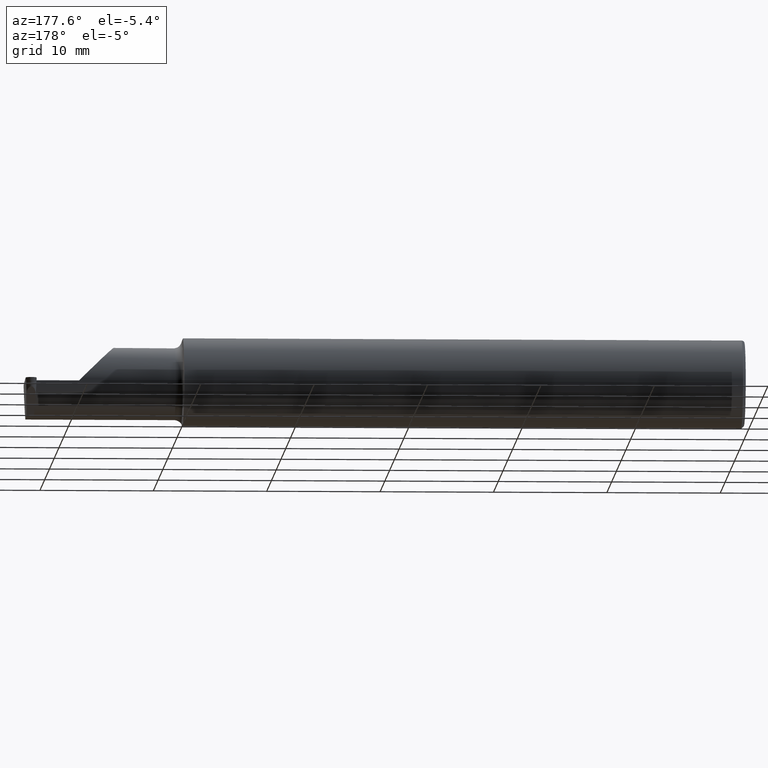
[diagram: clean part render]
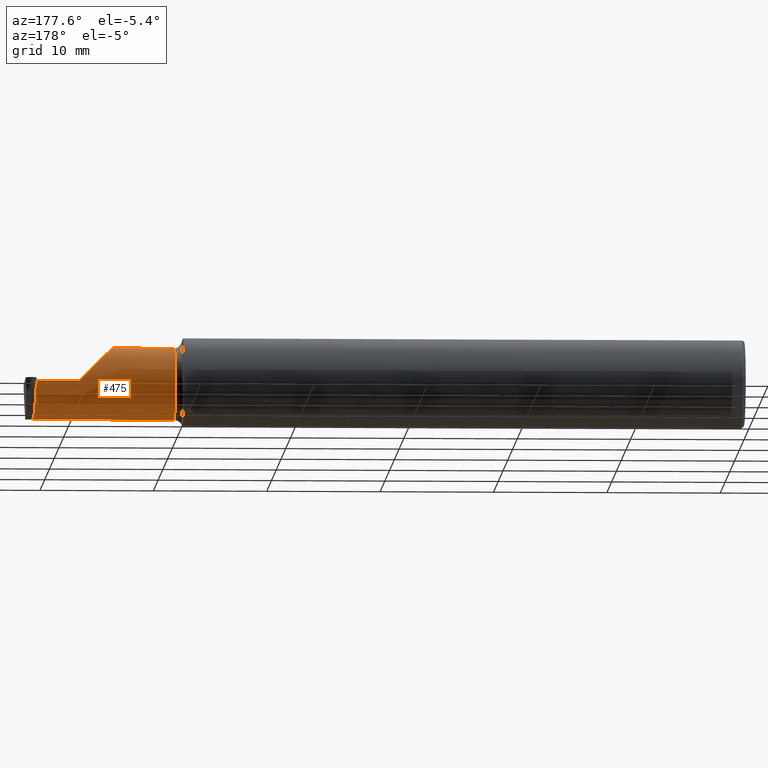
[diagram: same view with one face highlighted and labeled with its STEP entity id]
A machine part, auxiliary view. The second image highlights one B-rep face of the part: STEP entity #475.
In plain terms, the highlighted cylindrical surface (edge-blend (fillet) strip) has radius 3.175 mm, axis along (-1, -0, -0).
Its self-contained STEP definition (entity closure, byte-faithful):
#8 = DIRECTION ( 'NONE',  ( 0.000000000000000000, -1.000000000000000000, 0.000000000000000000 ) ) ;
#16 = EDGE_CURVE ( 'NONE', #434, #116, #212, .T. ) ;
#49 = EDGE_CURVE ( 'NONE', #323, #434, #563, .T. ) ;
#52 =( BOUNDED_CURVE ( )  B_SPLINE_CURVE ( 3, ( #372, #584, #316, #361 ),
 .UNSPECIFIED., .F., .F. ) 
 B_SPLINE_CURVE_WITH_KNOTS ( ( 4, 4 ),
 ( 3.176499238629678867, 4.677482395344782162 ),
 .UNSPECIFIED. ) 
 CURVE ( )  GEOMETRIC_REPRESENTATION_ITEM ( )  RATIONAL_B_SPLINE_CURVE ( ( 1.000000000000000000, 0.8209024677461181918, 0.8209024677461181918, 1.000000000000000000 ) ) 
 REPRESENTATION_ITEM ( '' )  );
#61 = CARTESIAN_POINT ( 'NONE',  ( 2.491731938133923130, -0.08909999999999977660, -0.1250000000000000278 ) ) ;
#63 = CARTESIAN_POINT ( 'NONE',  ( 2.455817866257967275, 0.03559550628247789422, -0.008719559218018122643 ) ) ;
#87 = CARTESIAN_POINT ( 'NONE',  ( 2.456122359975489111, 0.03589999999999995278, 0.000000000000000000 ) ) ;
#110 = EDGE_LOOP ( 'NONE', ( #494, #569, #342, #324, #200, #304, #359, #465, #698, #431 ) ) ;
#111 = DIRECTION ( 'NONE',  ( -1.000000000000000000, -3.338285537973413126E-17, -0.000000000000000000 ) ) ;
#113 = VECTOR ( 'NONE', #180, 39.37007874015748143 ) ;
#116 = VERTEX_POINT ( 'NONE', #545 ) ;
#125 = EDGE_CURVE ( 'NONE', #640, #170, #550, .T. ) ;
#151 = CARTESIAN_POINT ( 'NONE',  ( 2.491656083944432165, -0.09360841750841739084, -0.1249186702281520622 ) ) ;
#165 = CARTESIAN_POINT ( 'NONE',  ( 2.491731938133923130, -0.08909999999999977660, -0.1250000000000000278 ) ) ;
#170 = VERTEX_POINT ( 'NONE', #87 ) ;
#172 = CARTESIAN_POINT ( 'NONE',  ( 2.491680411974855680, -0.09210618219364760662, -0.1249728871357008442 ) ) ;
#174 = CIRCLE ( 'NONE', #281, 0.1250000000000000833 ) ;
#176 = CARTESIAN_POINT ( 'NONE',  ( 1.974999999999999867, -0.09360841750841737696, -0.1249186702281520900 ) ) ;
#180 = DIRECTION ( 'NONE',  ( 1.000000000000000000, 3.338285537973413126E-17, 0.000000000000000000 ) ) ;
#185 = CARTESIAN_POINT ( 'NONE',  ( 2.491656083944432165, -0.09360841750841739084, -0.1249186702281520622 ) ) ;
#200 = ORIENTED_EDGE ( 'NONE', *, *, #125, .T. ) ;
#201 = EDGE_CURVE ( 'NONE', #240, #287, #508, .T. ) ;
#205 = VERTEX_POINT ( 'NONE', #294 ) ;
#212 = LINE ( 'NONE', #633, #626 ) ;
#219 = CARTESIAN_POINT ( 'NONE',  ( 2.455919364163807739, 0.03569700418831857347, -0.005813039478678751031 ) ) ;
#228 = VECTOR ( 'NONE', #564, 39.37007874015748143 ) ;
#230 = LINE ( 'NONE', #556, #228 ) ;
#232 = CARTESIAN_POINT ( 'NONE',  ( 1.949999999999999956, 0.03590000000000000135, 6.735557395310446214E-17 ) ) ;
#240 = VERTEX_POINT ( 'NONE', #615 ) ;
#276 = CARTESIAN_POINT ( 'NONE',  ( 2.218230820000000048, -0.09360841750841740472, -0.1249186702281520622 ) ) ;
#281 = AXIS2_PLACEMENT_3D ( 'NONE', #468, #476, #322 ) ;
#287 = VERTEX_POINT ( 'NONE', #463 ) ;
#291 = VECTOR ( 'NONE', #111, 39.37007874015748143 ) ;
#294 = CARTESIAN_POINT ( 'NONE',  ( 2.185081329771846992, -0.09360841750841744635, 0.1249186702281520622 ) ) ;
#304 = ORIENTED_EDGE ( 'NONE', *, *, #598, .F. ) ;
#316 = CARTESIAN_POINT ( 'NONE',  ( 2.465949139812158020, 0.03076608555686792534, -0.07778349322819352873 ) ) ;
#322 = DIRECTION ( 'NONE',  ( 0.000000000000000000, -1.000000000000000000, 0.000000000000000000 ) ) ;
#323 = VERTEX_POINT ( 'NONE', #151 ) ;
#324 = ORIENTED_EDGE ( 'NONE', *, *, #420, .T. ) ;
#338 = VECTOR ( 'NONE', #513, 39.37007874015748143 ) ;
#342 = ORIENTED_EDGE ( 'NONE', *, *, #642, .T. ) ;
#352 = EDGE_CURVE ( 'NONE', #699, #554, #174, .T. ) ;
#359 = ORIENTED_EDGE ( 'NONE', *, *, #201, .F. ) ;
#361 = CARTESIAN_POINT ( 'NONE',  ( 2.463491912695082053, 0.03559550628246012371, -0.008719559218016929153 ) ) ;
#372 = CARTESIAN_POINT ( 'NONE',  ( 2.467773529127905707, -0.08910000000000001252, -0.1250000000000000278 ) ) ;
#379 = DIRECTION ( 'NONE',  ( -1.000000000000000000, -3.338285537973413126E-17, -0.000000000000000000 ) ) ;
#395 = CARTESIAN_POINT ( 'NONE',  ( 2.310000000000000053, 0.03590000000000001523, 6.735557395310446214E-17 ) ) ;
#419 = CARTESIAN_POINT ( 'NONE',  ( 2.185081329771846992, -0.09360841750841744635, 0.1249186702281520622 ) ) ;
#420 = EDGE_CURVE ( 'NONE', #205, #640, #533, .T. ) ;
#428 = CARTESIAN_POINT ( 'NONE',  ( 2.456122359975489111, 0.03589999999999995278, 0.000000000000000000 ) ) ;
#431 = ORIENTED_EDGE ( 'NONE', *, *, #49, .F. ) ;
#432 = CARTESIAN_POINT ( 'NONE',  ( 1.949999999999999956, -0.08910000000000002640, 0.000000000000000000 ) ) ;
#434 = VERTEX_POINT ( 'NONE', #165 ) ;
#442 = EDGE_CURVE ( 'NONE', #116, #240, #52, .T. ) ;
#463 = CARTESIAN_POINT ( 'NONE',  ( 2.455817866257967275, 0.03559550628247789422, -0.008719559218018122643 ) ) ;
#465 = ORIENTED_EDGE ( 'NONE', *, *, #442, .F. ) ;
#468 = CARTESIAN_POINT ( 'NONE',  ( 1.974999999999999867, -0.08910000000000002640, 0.000000000000000000 ) ) ;
#475 = ADVANCED_FACE ( 'NONE', ( #548 ), #538, .T. ) ;
#476 = DIRECTION ( 'NONE',  ( -1.000000000000000000, -3.338285537973413126E-17, -0.000000000000000000 ) ) ;
#494 = ORIENTED_EDGE ( 'NONE', *, *, #586, .T. ) ;
#500 = LINE ( 'NONE', #276, #291 ) ;
#508 = LINE ( 'NONE', #611, #338 ) ;
#513 = DIRECTION ( 'NONE',  ( -1.000000000000000000, -3.338285537973413126E-17, -0.000000000000000000 ) ) ;
#527 = AXIS2_PLACEMENT_3D ( 'NONE', #432, #379, #8 ) ;
#533 =( BOUNDED_CURVE ( )  B_SPLINE_CURVE ( 3, ( #419, #570, #536, #635 ),
 .UNSPECIFIED., .F., .F. ) 
 B_SPLINE_CURVE_WITH_KNOTS ( ( 4, 4 ),
 ( 6.247110142813123268, 7.853981633974482790 ),
 .UNSPECIFIED. ) 
 CURVE ( )  GEOMETRIC_REPRESENTATION_ITEM ( )  RATIONAL_B_SPLINE_CURVE ( ( 1.000000000000000000, 0.7961586327312956124, 0.7961586327312956124, 1.000000000000000000 ) ) 
 REPRESENTATION_ITEM ( '' )  );
#536 = CARTESIAN_POINT ( 'NONE',  ( 2.234664766370900058, 0.03589999999999999442, 0.07533523362909992638 ) ) ;
#538 = CYLINDRICAL_SURFACE ( 'NONE', #527, 0.1250000000000000555 ) ;
#545 = CARTESIAN_POINT ( 'NONE',  ( 2.467773529127905707, -0.08910000000000001252, -0.1250000000000000278 ) ) ;
#548 = FACE_OUTER_BOUND ( 'NONE', #110, .T. ) ;
#550 = LINE ( 'NONE', #232, #113 ) ;
#554 = VERTEX_POINT ( 'NONE', #176 ) ;
#556 = CARTESIAN_POINT ( 'NONE',  ( 2.218230820000000048, -0.09360841750841740472, 0.1249186702281520622 ) ) ;
#563 =( BOUNDED_CURVE ( )  B_SPLINE_CURVE ( 3, ( #185, #172, #594, #61 ),
 .UNSPECIFIED., .F., .F. ) 
 B_SPLINE_CURVE_WITH_KNOTS ( ( 4, 4 ),
 ( 0.4273896528388664295, 0.4634648172053312254 ),
 .UNSPECIFIED. ) 
 CURVE ( )  GEOMETRIC_REPRESENTATION_ITEM ( )  RATIONAL_B_SPLINE_CURVE ( ( 1.000000000000000000, 0.9998915514833921492, 0.9998915514833921492, 1.000000000000000000 ) ) 
 REPRESENTATION_ITEM ( '' )  );
#564 = DIRECTION ( 'NONE',  ( 1.000000000000000000, 3.338285537973413126E-17, 0.000000000000000000 ) ) ;
#569 = ORIENTED_EDGE ( 'NONE', *, *, #352, .F. ) ;
#570 = CARTESIAN_POINT ( 'NONE',  ( 2.182364188281493700, -0.01832219985822300390, 0.1276358117185053542 ) ) ;
#584 = CARTESIAN_POINT ( 'NONE',  ( 2.467687720866161172, -0.01986741890188695875, -0.1250000000000000555 ) ) ;
#586 = EDGE_CURVE ( 'NONE', #323, #554, #500, .T. ) ;
#594 = CARTESIAN_POINT ( 'NONE',  ( 2.491705699447075428, -0.09060321336276816462, -0.1250000000000000833 ) ) ;
#598 = EDGE_CURVE ( 'NONE', #287, #170, #669, .T. ) ;
#607 = CARTESIAN_POINT ( 'NONE',  ( 1.974999999999999867, -0.09360841750841737696, 0.1249186702281520900 ) ) ;
#611 = CARTESIAN_POINT ( 'NONE',  ( 1.949999999999999067, 0.03559550628247058757, -0.008719559218122391667 ) ) ;
#615 = CARTESIAN_POINT ( 'NONE',  ( 2.463491912695082053, 0.03559550628246012371, -0.008719559218016929153 ) ) ;
#626 = VECTOR ( 'NONE', #694, 39.37007874015748143 ) ;
#633 = CARTESIAN_POINT ( 'NONE',  ( 2.689688574201023474, -0.08909999999999977660, -0.1250000000000000278 ) ) ;
#635 = CARTESIAN_POINT ( 'NONE',  ( 2.310000000000000053, 0.03590000000000001523, 6.735557395310446214E-17 ) ) ;
#640 = VERTEX_POINT ( 'NONE', #395 ) ;
#642 = EDGE_CURVE ( 'NONE', #699, #205, #230, .T. ) ;
#655 = CARTESIAN_POINT ( 'NONE',  ( 2.456020862069648647, 0.03579850209415925966, -0.002906519739339375082 ) ) ;
#669 = B_SPLINE_CURVE_WITH_KNOTS ( 'NONE', 3,
 ( #63, #219, #655, #428 ),
 .UNSPECIFIED., .F., .F.,
 ( 4, 4 ),
 ( 0.000000000000000000, 1.000000000000000000 ),
 .UNSPECIFIED. ) ;
#694 = DIRECTION ( 'NONE',  ( -1.000000000000000000, -0.000000000000000000, -0.000000000000000000 ) ) ;
#698 = ORIENTED_EDGE ( 'NONE', *, *, #16, .F. ) ;
#699 = VERTEX_POINT ( 'NONE', #607 ) ;